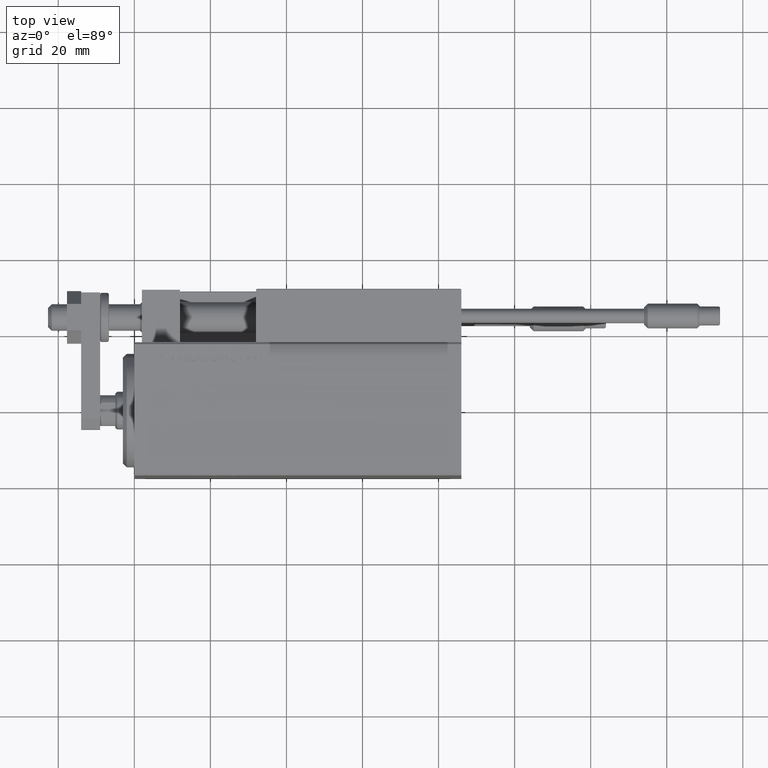
[diagram: clean part render]
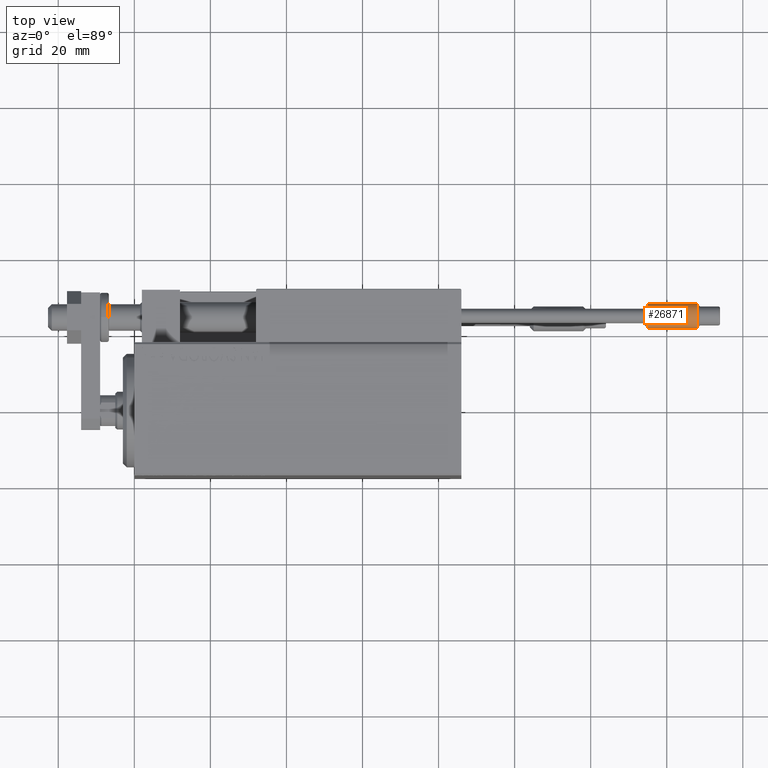
[diagram: same view with one face highlighted and labeled with its STEP entity id]
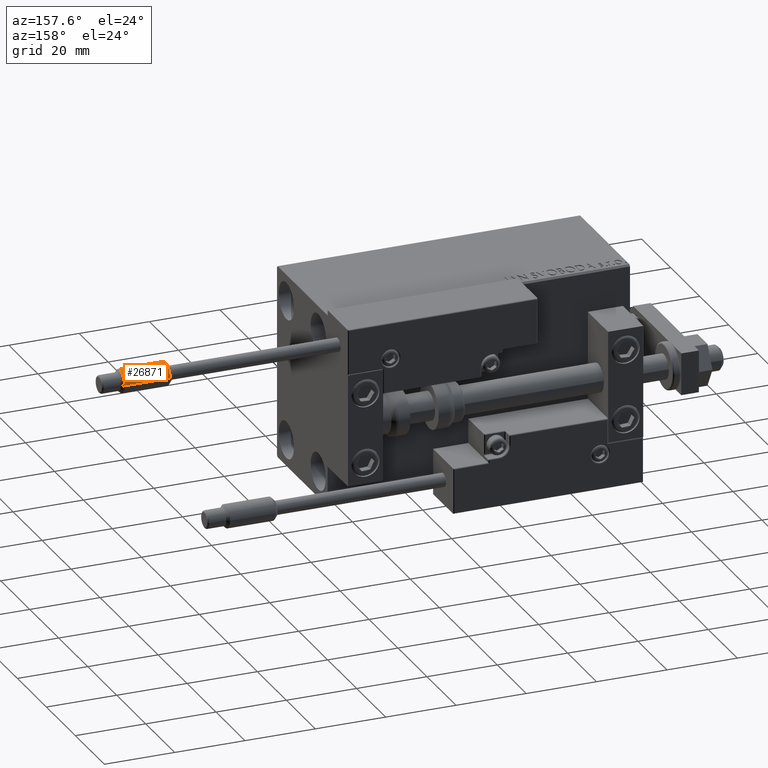
[diagram: same view with one face highlighted and labeled with its STEP entity id]
A machine part, top view. The second image highlights one B-rep face of the part: STEP entity #26871.
A second angle (auxiliary view) of the same face is appended — the face is thin or edge-on in the first view.
In plain terms, the highlighted cylindrical surface (edge-blend (fillet) strip) has radius 3.25 mm, axis along (-1, 0, 0).
Its self-contained STEP definition (entity closure, byte-faithful):
#225 = AXIS2_PLACEMENT_3D ( 'NONE', #5624, #44816, #40967 ) ;
#1440 = DIRECTION ( 'NONE',  ( -0.000000000000000000, -0.000000000000000000, -1.000000000000000000 ) ) ;
#2282 = FACE_OUTER_BOUND ( 'NONE', #19925, .T. ) ;
#2341 = CARTESIAN_POINT ( 'NONE',  ( 0.000000000000000000, 0.000000000000000000, 61.99999999999999289 ) ) ;
#5624 = CARTESIAN_POINT ( 'NONE',  ( 0.000000000000000000, 0.000000000000000000, 63.00000000000000000 ) ) ;
#7216 = AXIS2_PLACEMENT_3D ( 'NONE', #45125, #44378, #44874 ) ;
#8051 = EDGE_CURVE ( 'NONE', #46735, #14981, #32409, .T. ) ;
#9466 = ORIENTED_EDGE ( 'NONE', *, *, #22221, .F. ) ;
#11364 = ORIENTED_EDGE ( 'NONE', *, *, #8051, .T. ) ;
#12753 = VERTEX_POINT ( 'NONE', #35355 ) ;
#14981 = VERTEX_POINT ( 'NONE', #44515 ) ;
#19300 = CARTESIAN_POINT ( 'NONE',  ( 3.250000000000000444, 3.980102097228898231E-16, 61.99999999999999289 ) ) ;
#19925 = EDGE_LOOP ( 'NONE', ( #34844, #11364, #50245, #9466 ) ) ;
#20367 = DIRECTION ( 'NONE',  ( -0.000000000000000000, -0.000000000000000000, -1.000000000000000000 ) ) ;
#21815 = DIRECTION ( 'NONE',  ( 0.000000000000000000, 0.000000000000000000, -1.000000000000000000 ) ) ;
#22221 = EDGE_CURVE ( 'NONE', #50063, #12753, #48572, .T. ) ;
#23012 = DIRECTION ( 'NONE',  ( 1.000000000000000000, 0.000000000000000000, 0.000000000000000000 ) ) ;
#26871 = ADVANCED_FACE ( 'NONE', ( #2282 ), #29195, .T. ) ;
#27136 = CARTESIAN_POINT ( 'NONE',  ( -3.250000000000000444, 0.000000000000000000, 61.99999999999999289 ) ) ;
#28684 = VECTOR ( 'NONE', #1440, 1000.000000000000000 ) ;
#29140 = EDGE_CURVE ( 'NONE', #50063, #46735, #35395, .T. ) ;
#29195 = CYLINDRICAL_SURFACE ( 'NONE', #225, 3.250000000000000444 ) ;
#32409 = LINE ( 'NONE', #48018, #33241 ) ;
#33241 = VECTOR ( 'NONE', #20367, 1000.000000000000000 ) ;
#34324 = EDGE_CURVE ( 'NONE', #14981, #12753, #48109, .T. ) ;
#34844 = ORIENTED_EDGE ( 'NONE', *, *, #29140, .T. ) ;
#35355 = CARTESIAN_POINT ( 'NONE',  ( -3.250000000000000444, 0.000000000000000000, 48.99999999999998579 ) ) ;
#35395 = CIRCLE ( 'NONE', #47664, 3.250000000000000444 ) ;
#36551 = CARTESIAN_POINT ( 'NONE',  ( -3.250000000000000444, 0.000000000000000000, 63.00000000000000000 ) ) ;
#40967 = DIRECTION ( 'NONE',  ( -1.000000000000000000, 0.000000000000000000, 0.000000000000000000 ) ) ;
#44378 = DIRECTION ( 'NONE',  ( -0.000000000000000000, -0.000000000000000000, 1.000000000000000000 ) ) ;
#44515 = CARTESIAN_POINT ( 'NONE',  ( 3.250000000000000444, 3.980102097228898231E-16, 48.99999999999998579 ) ) ;
#44816 = DIRECTION ( 'NONE',  ( -0.000000000000000000, -0.000000000000000000, -1.000000000000000000 ) ) ;
#44874 = DIRECTION ( 'NONE',  ( 1.000000000000000000, 0.000000000000000000, 0.000000000000000000 ) ) ;
#45125 = CARTESIAN_POINT ( 'NONE',  ( 0.000000000000000000, 0.000000000000000000, 48.99999999999998579 ) ) ;
#46735 = VERTEX_POINT ( 'NONE', #19300 ) ;
#47664 = AXIS2_PLACEMENT_3D ( 'NONE', #2341, #21815, #23012 ) ;
#48018 = CARTESIAN_POINT ( 'NONE',  ( 3.250000000000000444, 3.980102097228898231E-16, 63.00000000000000000 ) ) ;
#48109 = CIRCLE ( 'NONE', #7216, 3.250000000000000444 ) ;
#48572 = LINE ( 'NONE', #36551, #28684 ) ;
#50063 = VERTEX_POINT ( 'NONE', #27136 ) ;
#50245 = ORIENTED_EDGE ( 'NONE', *, *, #34324, .T. ) ;